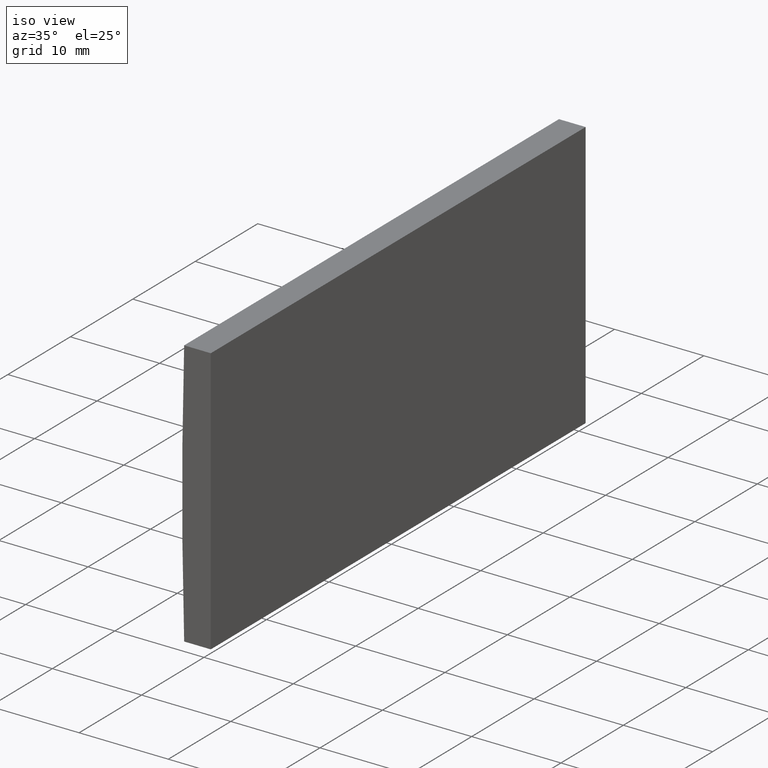
[diagram: clean part render]
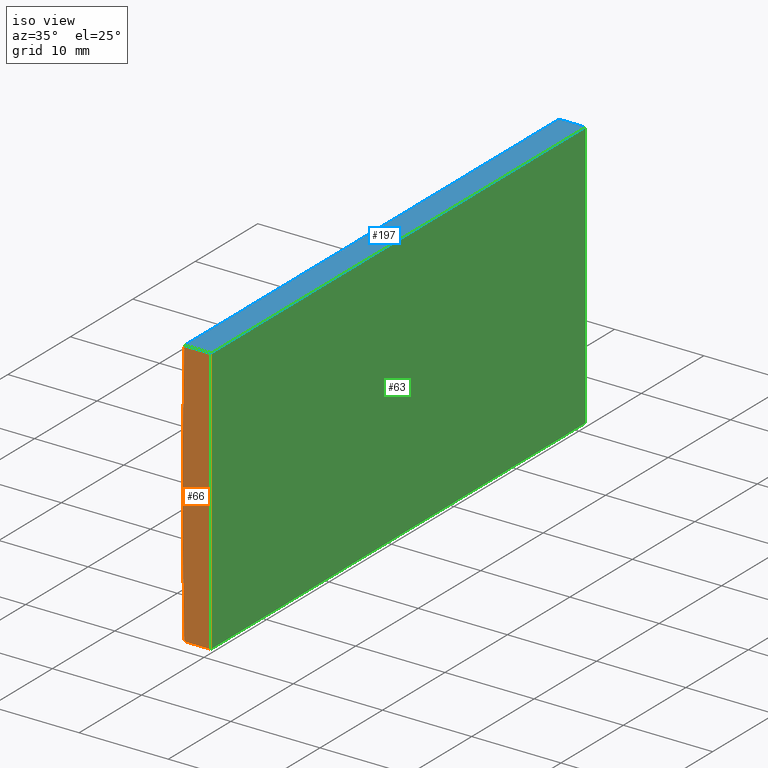
[diagram: same view with three faces highlighted in distinct colors, each labeled with its STEP entity id]
A machine part, iso view with three faces highlighted in distinct colors.
Their STEP definitions:

[orange] entity #66 — the highlighted planar face has unit normal (0, 1, 0).
#3 = ORIENTED_EDGE ( 'NONE', *, *, #31, .F. ) ;
#6 = VERTEX_POINT ( 'NONE', #192 ) ;
#12 = VERTEX_POINT ( 'NONE', #189 ) ;
#13 = VECTOR ( 'NONE', #200, 1000.000000000000000 ) ;
#16 = CARTESIAN_POINT ( 'NONE',  ( -512.2270640406708300, 0.0000000000000000000, -15.00000000000000000 ) ) ;
#19 = EDGE_CURVE ( 'NONE', #6, #139, #46, .T. ) ;
#22 = VECTOR ( 'NONE', #69, 1000.000000000000000 ) ;
#31 = EDGE_CURVE ( 'NONE', #154, #6, #204, .T. ) ;
#46 = LINE ( 'NONE', #82, #112 ) ;
#48 = ORIENTED_EDGE ( 'NONE', *, *, #111, .F. ) ;
#56 = EDGE_CURVE ( 'NONE', #12, #154, #88, .T. ) ;
#66 = ADVANCED_FACE ( 'NONE', ( #147 ), #159, .F. ) ;
#69 = DIRECTION ( 'NONE',  ( -1.000000000000000000, -0.0000000000000000000, -5.351448618768996800E-014 ) ) ;
#82 = CARTESIAN_POINT ( 'NONE',  ( -512.2270640406708300, 0.0000000000000000000, 15.00000000000000000 ) ) ;
#84 = CARTESIAN_POINT ( 'NONE',  ( -509.2447956651486700, 0.0000000000000000000, 15.00000000000000000 ) ) ;
#88 = LINE ( 'NONE', #179, #22 ) ;
#92 = LINE ( 'NONE', #114, #13 ) ;
#99 = CARTESIAN_POINT ( 'NONE',  ( 4.355204334851265500, 0.0000000000000000000, 4.286263797015675000E-017 ) ) ;
#103 = ORIENTED_EDGE ( 'NONE', *, *, #19, .F. ) ;
#109 = DIRECTION ( 'NONE',  ( 0.0000000000000000000, 1.000000000000000000, 0.0000000000000000000 ) ) ;
#111 = EDGE_CURVE ( 'NONE', #139, #12, #92, .T. ) ;
#112 = VECTOR ( 'NONE', #155, 1000.000000000000000 ) ;
#114 = CARTESIAN_POINT ( 'NONE',  ( -509.2447956651486700, 0.0000000000000000000, -14.99999999999984000 ) ) ;
#139 = VERTEX_POINT ( 'NONE', #84 ) ;
#147 = FACE_OUTER_BOUND ( 'NONE', #160, .T. ) ;
#149 = DIRECTION ( 'NONE',  ( 0.0000000000000000000, -0.0000000000000000000, 1.000000000000000000 ) ) ;
#154 = VERTEX_POINT ( 'NONE', #16 ) ;
#155 = DIRECTION ( 'NONE',  ( 1.000000000000000000, 0.0000000000000000000, 0.0000000000000000000 ) ) ;
#158 = ORIENTED_EDGE ( 'NONE', *, *, #56, .F. ) ;
#159 = PLANE ( 'NONE',  #194 ) ;
#160 = EDGE_LOOP ( 'NONE', ( #3, #158, #48, #103 ) ) ;
#171 = CARTESIAN_POINT ( 'NONE',  ( 4.355204334851265500, 0.0000000000000000000, 4.286263797015675000E-017 ) ) ;
#172 = DIRECTION ( 'NONE',  ( 0.0000000000000000000, 1.000000000000000000, 0.0000000000000000000 ) ) ;
#173 = DIRECTION ( 'NONE',  ( 0.0000000000000000000, 0.0000000000000000000, 1.000000000000000000 ) ) ;
#179 = CARTESIAN_POINT ( 'NONE',  ( -512.2270640406708300, 0.0000000000000000000, -15.00000000000000000 ) ) ;
#189 = CARTESIAN_POINT ( 'NONE',  ( -509.2447956651486700, 0.0000000000000000000, -14.99999999999984000 ) ) ;
#192 = CARTESIAN_POINT ( 'NONE',  ( -512.2270640406708300, 0.0000000000000000000, 15.00000000000000000 ) ) ;
#194 = AXIS2_PLACEMENT_3D ( 'NONE', #99, #109, #149 ) ;
#200 = DIRECTION ( 'NONE',  ( -0.0000000000000000000, -0.0000000000000000000, -1.000000000000000000 ) ) ;
#201 = AXIS2_PLACEMENT_3D ( 'NONE', #171, #172, #173 ) ;
#204 = CIRCLE ( 'NONE', #201, 516.7999999999999500 ) ;

[blue] entity #197 — the highlighted planar face has unit normal (0, 0, -1).
#6 = VERTEX_POINT ( 'NONE', #192 ) ;
#19 = EDGE_CURVE ( 'NONE', #6, #139, #46, .T. ) ;
#20 = ORIENTED_EDGE ( 'NONE', *, *, #19, .T. ) ;
#21 = DIRECTION ( 'NONE',  ( 1.000000000000000000, 0.0000000000000000000, 0.0000000000000000000 ) ) ;
#34 = CARTESIAN_POINT ( 'NONE',  ( -512.2270640406708300, 60.00000000000000000, 15.00000000000000000 ) ) ;
#45 = EDGE_CURVE ( 'NONE', #87, #132, #161, .T. ) ;
#46 = LINE ( 'NONE', #82, #112 ) ;
#61 = EDGE_CURVE ( 'NONE', #87, #6, #153, .T. ) ;
#75 = ORIENTED_EDGE ( 'NONE', *, *, #185, .F. ) ;
#82 = CARTESIAN_POINT ( 'NONE',  ( -512.2270640406708300, 0.0000000000000000000, 15.00000000000000000 ) ) ;
#84 = CARTESIAN_POINT ( 'NONE',  ( -509.2447956651486700, 0.0000000000000000000, 15.00000000000000000 ) ) ;
#87 = VERTEX_POINT ( 'NONE', #191 ) ;
#89 = ORIENTED_EDGE ( 'NONE', *, *, #45, .F. ) ;
#91 = VECTOR ( 'NONE', #188, 1000.000000000000000 ) ;
#95 = CARTESIAN_POINT ( 'NONE',  ( -509.2447956651486700, 60.00000000000000000, 15.00000000000000000 ) ) ;
#100 = ORIENTED_EDGE ( 'NONE', *, *, #61, .T. ) ;
#110 = DIRECTION ( 'NONE',  ( -1.000000000000000000, 0.0000000000000000000, -0.0000000000000000000 ) ) ;
#112 = VECTOR ( 'NONE', #155, 1000.000000000000000 ) ;
#116 = CARTESIAN_POINT ( 'NONE',  ( -509.2447956651486700, 60.00000000000000000, 15.00000000000000000 ) ) ;
#117 = VECTOR ( 'NONE', #21, 1000.000000000000000 ) ;
#127 = LINE ( 'NONE', #95, #134 ) ;
#129 = EDGE_LOOP ( 'NONE', ( #20, #75, #89, #100 ) ) ;
#132 = VERTEX_POINT ( 'NONE', #116 ) ;
#134 = VECTOR ( 'NONE', #167, 1000.000000000000000 ) ;
#137 = FACE_OUTER_BOUND ( 'NONE', #129, .T. ) ;
#139 = VERTEX_POINT ( 'NONE', #84 ) ;
#151 = AXIS2_PLACEMENT_3D ( 'NONE', #34, #186, #110 ) ;
#153 = LINE ( 'NONE', #184, #91 ) ;
#155 = DIRECTION ( 'NONE',  ( 1.000000000000000000, 0.0000000000000000000, 0.0000000000000000000 ) ) ;
#161 = LINE ( 'NONE', #162, #117 ) ;
#162 = CARTESIAN_POINT ( 'NONE',  ( -512.2270640406708300, 60.00000000000000000, 15.00000000000000000 ) ) ;
#167 = DIRECTION ( 'NONE',  ( -0.0000000000000000000, -1.000000000000000000, -0.0000000000000000000 ) ) ;
#177 = PLANE ( 'NONE',  #151 ) ;
#184 = CARTESIAN_POINT ( 'NONE',  ( -512.2270640406708300, 60.00000000000000000, 15.00000000000000000 ) ) ;
#185 = EDGE_CURVE ( 'NONE', #132, #139, #127, .T. ) ;
#186 = DIRECTION ( 'NONE',  ( 0.0000000000000000000, 0.0000000000000000000, -1.000000000000000000 ) ) ;
#188 = DIRECTION ( 'NONE',  ( -0.0000000000000000000, -1.000000000000000000, -0.0000000000000000000 ) ) ;
#191 = CARTESIAN_POINT ( 'NONE',  ( -512.2270640406708300, 60.00000000000000000, 15.00000000000000000 ) ) ;
#192 = CARTESIAN_POINT ( 'NONE',  ( -512.2270640406708300, 0.0000000000000000000, 15.00000000000000000 ) ) ;
#197 = ADVANCED_FACE ( 'NONE', ( #137 ), #177, .F. ) ;

[green] entity #63 — the highlighted planar face has unit normal (-1, 0, 0).
#5 = DIRECTION ( 'NONE',  ( 0.0000000000000000000, 0.0000000000000000000, 1.000000000000000000 ) ) ;
#8 = CARTESIAN_POINT ( 'NONE',  ( -509.2447956651486700, 60.00000000000000000, -14.99999999999984000 ) ) ;
#12 = VERTEX_POINT ( 'NONE', #189 ) ;
#13 = VECTOR ( 'NONE', #200, 1000.000000000000000 ) ;
#17 = ORIENTED_EDGE ( 'NONE', *, *, #185, .T. ) ;
#30 = CARTESIAN_POINT ( 'NONE',  ( -509.2447956651486700, 60.00000000000000000, -14.99999999999984000 ) ) ;
#52 = ORIENTED_EDGE ( 'NONE', *, *, #111, .T. ) ;
#53 = VERTEX_POINT ( 'NONE', #183 ) ;
#58 = DIRECTION ( 'NONE',  ( -1.000000000000000000, 0.0000000000000000000, 0.0000000000000000000 ) ) ;
#63 = ADVANCED_FACE ( 'NONE', ( #128 ), #76, .F. ) ;
#76 = PLANE ( 'NONE',  #98 ) ;
#84 = CARTESIAN_POINT ( 'NONE',  ( -509.2447956651486700, 0.0000000000000000000, 15.00000000000000000 ) ) ;
#92 = LINE ( 'NONE', #114, #13 ) ;
#95 = CARTESIAN_POINT ( 'NONE',  ( -509.2447956651486700, 60.00000000000000000, 15.00000000000000000 ) ) ;
#97 = DIRECTION ( 'NONE',  ( -0.0000000000000000000, -0.0000000000000000000, -1.000000000000000000 ) ) ;
#98 = AXIS2_PLACEMENT_3D ( 'NONE', #30, #58, #5 ) ;
#111 = EDGE_CURVE ( 'NONE', #139, #12, #92, .T. ) ;
#114 = CARTESIAN_POINT ( 'NONE',  ( -509.2447956651486700, 0.0000000000000000000, -14.99999999999984000 ) ) ;
#116 = CARTESIAN_POINT ( 'NONE',  ( -509.2447956651486700, 60.00000000000000000, 15.00000000000000000 ) ) ;
#119 = ORIENTED_EDGE ( 'NONE', *, *, #165, .F. ) ;
#127 = LINE ( 'NONE', #95, #134 ) ;
#128 = FACE_OUTER_BOUND ( 'NONE', #152, .T. ) ;
#130 = EDGE_CURVE ( 'NONE', #53, #12, #202, .T. ) ;
#132 = VERTEX_POINT ( 'NONE', #116 ) ;
#134 = VECTOR ( 'NONE', #167, 1000.000000000000000 ) ;
#138 = LINE ( 'NONE', #169, #193 ) ;
#139 = VERTEX_POINT ( 'NONE', #84 ) ;
#141 = DIRECTION ( 'NONE',  ( -0.0000000000000000000, -1.000000000000000000, -0.0000000000000000000 ) ) ;
#143 = ORIENTED_EDGE ( 'NONE', *, *, #130, .F. ) ;
#152 = EDGE_LOOP ( 'NONE', ( #52, #143, #119, #17 ) ) ;
#165 = EDGE_CURVE ( 'NONE', #132, #53, #138, .T. ) ;
#167 = DIRECTION ( 'NONE',  ( -0.0000000000000000000, -1.000000000000000000, -0.0000000000000000000 ) ) ;
#169 = CARTESIAN_POINT ( 'NONE',  ( -509.2447956651486700, 60.00000000000000000, -14.99999999999984000 ) ) ;
#180 = VECTOR ( 'NONE', #141, 1000.000000000000000 ) ;
#183 = CARTESIAN_POINT ( 'NONE',  ( -509.2447956651486700, 60.00000000000000000, -14.99999999999984000 ) ) ;
#185 = EDGE_CURVE ( 'NONE', #132, #139, #127, .T. ) ;
#189 = CARTESIAN_POINT ( 'NONE',  ( -509.2447956651486700, 0.0000000000000000000, -14.99999999999984000 ) ) ;
#193 = VECTOR ( 'NONE', #97, 1000.000000000000000 ) ;
#200 = DIRECTION ( 'NONE',  ( -0.0000000000000000000, -0.0000000000000000000, -1.000000000000000000 ) ) ;
#202 = LINE ( 'NONE', #8, #180 ) ;